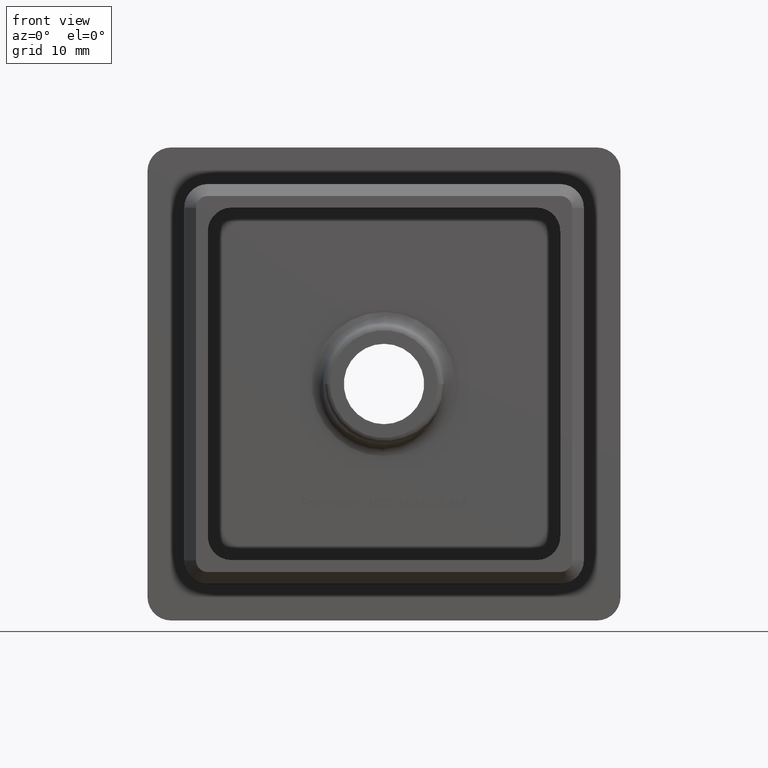
[diagram: clean part render]
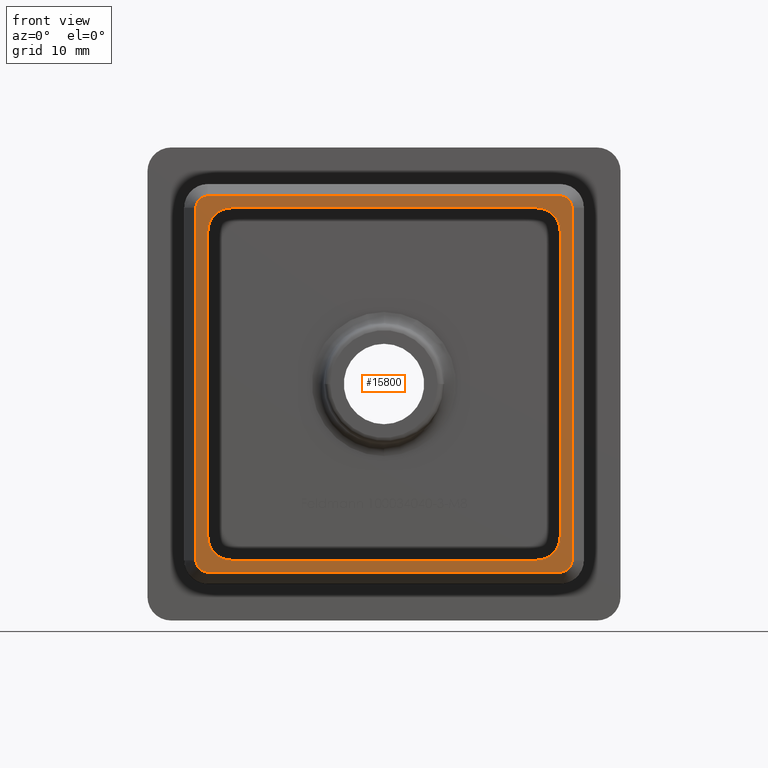
[diagram: same view with one face highlighted and labeled with its STEP entity id]
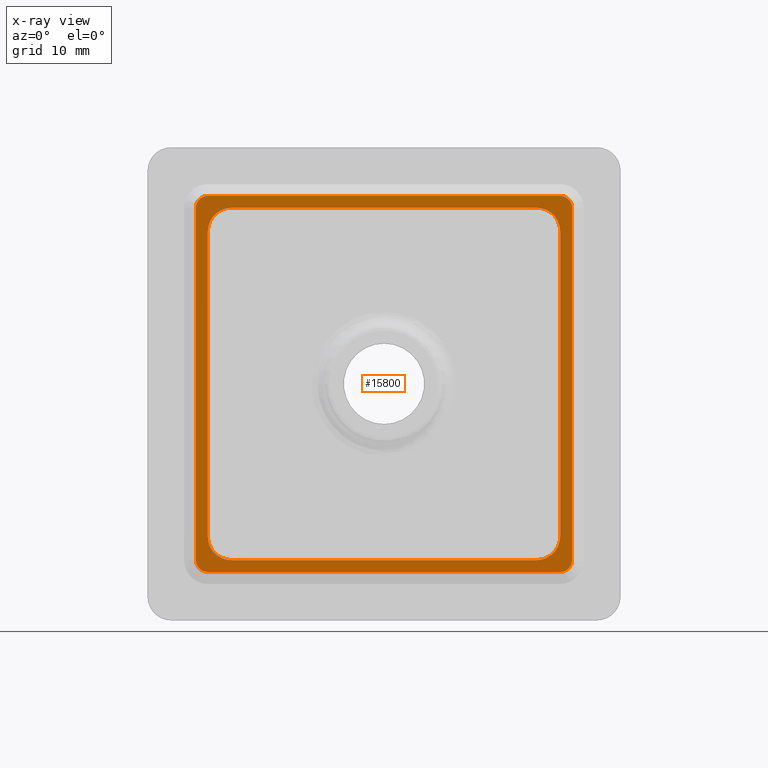
[diagram: x-ray of the same camera — body ghosted, the highlighted face saturated]
A machine part, front view. The second image highlights one B-rep face of the part: STEP entity #15800.
The next image is the same camera in x-ray: the body ghosted, the highlighted face saturated — about 0% of this face is hidden behind the body in this view.
In plain terms, the highlighted planar face has unit normal (0, -1, 0).
Its self-contained STEP definition (entity closure, byte-faithful):
#63 = ORIENTED_EDGE ( 'NONE', *, *, #4420, .T. ) ;
#165 = CIRCLE ( 'NONE', #7943, 0.9999999999999991100 ) ;
#178 = CARTESIAN_POINT ( 'NONE',  ( -14.89999999999999900, -20.00000000000000000, 12.89999999999999900 ) ) ;
#394 = LINE ( 'NONE', #7751, #15879 ) ;
#902 = CARTESIAN_POINT ( 'NONE',  ( -14.89999999999999900, -20.00000000000000000, 14.89999999999999900 ) ) ;
#972 = CIRCLE ( 'NONE', #5448, 2.000000000000000000 ) ;
#1068 = DIRECTION ( 'NONE',  ( 0.0000000000000000000, -1.000000000000000000, 0.0000000000000000000 ) ) ;
#1162 = VERTEX_POINT ( 'NONE', #7143 ) ;
#1170 = PLANE ( 'NONE',  #3607 ) ;
#1190 = EDGE_CURVE ( 'NONE', #16471, #14129, #3633, .T. ) ;
#1260 = CIRCLE ( 'NONE', #14712, 0.9999999999999991100 ) ;
#1265 = CARTESIAN_POINT ( 'NONE',  ( 12.90000000000000000, -20.00000000000000000, -12.89999999999999900 ) ) ;
#1336 = EDGE_CURVE ( 'NONE', #13993, #10744, #10351, .T. ) ;
#1438 = EDGE_CURVE ( 'NONE', #1809, #15512, #14113, .T. ) ;
#1642 = ORIENTED_EDGE ( 'NONE', *, *, #16923, .F. ) ;
#1714 = AXIS2_PLACEMENT_3D ( 'NONE', #16545, #17944, #7967 ) ;
#1809 = VERTEX_POINT ( 'NONE', #12006 ) ;
#1811 = EDGE_CURVE ( 'NONE', #4732, #1162, #394, .T. ) ;
#2181 = VECTOR ( 'NONE', #2393, 1000.000000000000000 ) ;
#2265 = ORIENTED_EDGE ( 'NONE', *, *, #12146, .F. ) ;
#2393 = DIRECTION ( 'NONE',  ( 0.0000000000000000000, -0.0000000000000000000, -1.000000000000000000 ) ) ;
#2419 = EDGE_LOOP ( 'NONE', ( #63, #14162, #16485, #4805, #7478, #6462, #7215, #11744 ) ) ;
#2426 = EDGE_CURVE ( 'NONE', #3245, #7721, #165, .T. ) ;
#2463 = DIRECTION ( 'NONE',  ( 0.0000000000000000000, 0.0000000000000000000, -1.000000000000000000 ) ) ;
#2470 = VECTOR ( 'NONE', #13766, 1000.000000000000000 ) ;
#2703 = CIRCLE ( 'NONE', #1714, 0.9999999999999991100 ) ;
#2727 = CARTESIAN_POINT ( 'NONE',  ( 0.0000000000000000000, -20.00000000000000000, 0.0000000000000000000 ) ) ;
#2821 = DIRECTION ( 'NONE',  ( 0.0000000000000000000, -1.000000000000000000, 0.0000000000000000000 ) ) ;
#2861 = CARTESIAN_POINT ( 'NONE',  ( 14.89999999999999700, -20.00000000000000000, -15.89999999999999700 ) ) ;
#3245 = VERTEX_POINT ( 'NONE', #17595 ) ;
#3365 = DIRECTION ( 'NONE',  ( 5.821219718042977200E-017, -0.0000000000000000000, 1.000000000000000000 ) ) ;
#3386 = DIRECTION ( 'NONE',  ( 0.0000000000000000000, 0.0000000000000000000, -1.000000000000000000 ) ) ;
#3588 = EDGE_CURVE ( 'NONE', #7721, #18153, #7698, .T. ) ;
#3607 = AXIS2_PLACEMENT_3D ( 'NONE', #2727, #5373, #18135 ) ;
#3633 = CIRCLE ( 'NONE', #6198, 2.000000000000000000 ) ;
#3874 = VERTEX_POINT ( 'NONE', #17355 ) ;
#4085 = CARTESIAN_POINT ( 'NONE',  ( 14.89999999999999700, -20.00000000000000000, -15.89999999999999700 ) ) ;
#4103 = DIRECTION ( 'NONE',  ( 0.0000000000000000000, 0.0000000000000000000, -1.000000000000000000 ) ) ;
#4420 = EDGE_CURVE ( 'NONE', #15512, #13838, #9660, .T. ) ;
#4732 = VERTEX_POINT ( 'NONE', #8213 ) ;
#4805 = ORIENTED_EDGE ( 'NONE', *, *, #11597, .T. ) ;
#4913 = FACE_BOUND ( 'NONE', #14825, .T. ) ;
#5090 = EDGE_CURVE ( 'NONE', #10973, #3874, #1260, .T. ) ;
#5196 = ORIENTED_EDGE ( 'NONE', *, *, #1190, .T. ) ;
#5345 = CARTESIAN_POINT ( 'NONE',  ( 14.89999999999999700, -20.00000000000000000, 14.89999999999999900 ) ) ;
#5373 = DIRECTION ( 'NONE',  ( 0.0000000000000000000, -1.000000000000000000, 0.0000000000000000000 ) ) ;
#5448 = AXIS2_PLACEMENT_3D ( 'NONE', #16463, #13760, #2463 ) ;
#5488 = VECTOR ( 'NONE', #14041, 1000.000000000000000 ) ;
#5563 = CIRCLE ( 'NONE', #13436, 2.000000000000000000 ) ;
#5628 = DIRECTION ( 'NONE',  ( 0.0000000000000000000, 0.0000000000000000000, 1.000000000000000000 ) ) ;
#5838 = CARTESIAN_POINT ( 'NONE',  ( -12.89999999999999900, -20.00000000000000000, -14.89999999999999700 ) ) ;
#6198 = AXIS2_PLACEMENT_3D ( 'NONE', #13736, #17773, #8040 ) ;
#6446 = CARTESIAN_POINT ( 'NONE',  ( -12.89999999999999900, -20.00000000000000000, 14.89999999999999900 ) ) ;
#6462 = ORIENTED_EDGE ( 'NONE', *, *, #3588, .T. ) ;
#6614 = DIRECTION ( 'NONE',  ( -1.000000000000000000, 0.0000000000000000000, 0.0000000000000000000 ) ) ;
#6751 = AXIS2_PLACEMENT_3D ( 'NONE', #11843, #11657, #3386 ) ;
#7069 = CARTESIAN_POINT ( 'NONE',  ( -15.89999999999999700, -20.00000000000000000, -14.89999999999999900 ) ) ;
#7128 = DIRECTION ( 'NONE',  ( -0.0000000000000000000, 1.000000000000000000, -0.0000000000000000000 ) ) ;
#7143 = CARTESIAN_POINT ( 'NONE',  ( 14.89999999999999900, -20.00000000000000000, 12.89999999999999900 ) ) ;
#7199 = ORIENTED_EDGE ( 'NONE', *, *, #9963, .T. ) ;
#7215 = ORIENTED_EDGE ( 'NONE', *, *, #16389, .T. ) ;
#7476 = LINE ( 'NONE', #13605, #9256 ) ;
#7478 = ORIENTED_EDGE ( 'NONE', *, *, #2426, .T. ) ;
#7650 = DIRECTION ( 'NONE',  ( 0.0000000000000000000, 0.0000000000000000000, -1.000000000000000000 ) ) ;
#7698 = LINE ( 'NONE', #10136, #11214 ) ;
#7721 = VERTEX_POINT ( 'NONE', #11605 ) ;
#7751 = CARTESIAN_POINT ( 'NONE',  ( 14.89999999999999900, -20.00000000000000000, 14.89999999999999900 ) ) ;
#7943 = AXIS2_PLACEMENT_3D ( 'NONE', #14910, #1068, #15150 ) ;
#7967 = DIRECTION ( 'NONE',  ( 0.0000000000000000000, 0.0000000000000000000, -1.000000000000000000 ) ) ;
#8040 = DIRECTION ( 'NONE',  ( 0.0000000000000000000, 0.0000000000000000000, -1.000000000000000000 ) ) ;
#8199 = DIRECTION ( 'NONE',  ( 0.0000000000000000000, 0.0000000000000000000, -1.000000000000000000 ) ) ;
#8213 = CARTESIAN_POINT ( 'NONE',  ( 14.89999999999999700, -20.00000000000000000, -12.90000000000000000 ) ) ;
#8639 = LINE ( 'NONE', #16269, #2470 ) ;
#9256 = VECTOR ( 'NONE', #6614, 1000.000000000000000 ) ;
#9316 = DIRECTION ( 'NONE',  ( 0.0000000000000000000, -1.000000000000000000, 0.0000000000000000000 ) ) ;
#9462 = DIRECTION ( 'NONE',  ( -1.000000000000000000, -0.0000000000000000000, -0.0000000000000000000 ) ) ;
#9660 = CIRCLE ( 'NONE', #14218, 1.000000000000000900 ) ;
#9963 = EDGE_CURVE ( 'NONE', #14559, #10744, #11588, .T. ) ;
#10094 = EDGE_CURVE ( 'NONE', #13993, #1162, #972, .T. ) ;
#10136 = CARTESIAN_POINT ( 'NONE',  ( -15.89999999999999700, -20.00000000000000000, -14.89999999999999700 ) ) ;
#10351 = LINE ( 'NONE', #17722, #10793 ) ;
#10744 = VERTEX_POINT ( 'NONE', #6446 ) ;
#10793 = VECTOR ( 'NONE', #9462, 1000.000000000000000 ) ;
#10973 = VERTEX_POINT ( 'NONE', #14465 ) ;
#11214 = VECTOR ( 'NONE', #7650, 1000.000000000000000 ) ;
#11258 = CARTESIAN_POINT ( 'NONE',  ( 15.89999999999999700, -20.00000000000000000, 14.89999999999999900 ) ) ;
#11588 = CIRCLE ( 'NONE', #6751, 2.000000000000000000 ) ;
#11597 = EDGE_CURVE ( 'NONE', #3874, #3245, #7476, .T. ) ;
#11605 = CARTESIAN_POINT ( 'NONE',  ( -15.89999999999999700, -20.00000000000000000, 14.89999999999999900 ) ) ;
#11657 = DIRECTION ( 'NONE',  ( -0.0000000000000000000, 1.000000000000000000, -0.0000000000000000000 ) ) ;
#11744 = ORIENTED_EDGE ( 'NONE', *, *, #1438, .T. ) ;
#11812 = CARTESIAN_POINT ( 'NONE',  ( 12.90000000000000000, -20.00000000000000000, 14.89999999999999900 ) ) ;
#11843 = CARTESIAN_POINT ( 'NONE',  ( -12.89999999999999900, -20.00000000000000000, 12.89999999999999900 ) ) ;
#12006 = CARTESIAN_POINT ( 'NONE',  ( -14.89999999999999900, -20.00000000000000000, -15.89999999999999700 ) ) ;
#12146 = EDGE_CURVE ( 'NONE', #14559, #14129, #15422, .T. ) ;
#12577 = DIRECTION ( 'NONE',  ( 0.0000000000000000000, 0.0000000000000000000, -1.000000000000000000 ) ) ;
#13436 = AXIS2_PLACEMENT_3D ( 'NONE', #1265, #7128, #4103 ) ;
#13479 = ORIENTED_EDGE ( 'NONE', *, *, #15052, .T. ) ;
#13605 = CARTESIAN_POINT ( 'NONE',  ( -14.89999999999999900, -20.00000000000000000, 15.89999999999999700 ) ) ;
#13736 = CARTESIAN_POINT ( 'NONE',  ( -12.89999999999999900, -20.00000000000000000, -12.89999999999999700 ) ) ;
#13760 = DIRECTION ( 'NONE',  ( -0.0000000000000000000, 1.000000000000000000, -0.0000000000000000000 ) ) ;
#13766 = DIRECTION ( 'NONE',  ( 1.000000000000000000, 0.0000000000000000000, -5.821219718042978400E-017 ) ) ;
#13838 = VERTEX_POINT ( 'NONE', #18094 ) ;
#13993 = VERTEX_POINT ( 'NONE', #11812 ) ;
#14041 = DIRECTION ( 'NONE',  ( 1.000000000000000000, 0.0000000000000000000, 0.0000000000000000000 ) ) ;
#14113 = LINE ( 'NONE', #4085, #5488 ) ;
#14129 = VERTEX_POINT ( 'NONE', #14653 ) ;
#14162 = ORIENTED_EDGE ( 'NONE', *, *, #18111, .T. ) ;
#14218 = AXIS2_PLACEMENT_3D ( 'NONE', #17509, #9316, #12577 ) ;
#14465 = CARTESIAN_POINT ( 'NONE',  ( 15.89999999999999700, -20.00000000000000000, 14.89999999999999900 ) ) ;
#14559 = VERTEX_POINT ( 'NONE', #178 ) ;
#14653 = CARTESIAN_POINT ( 'NONE',  ( -14.89999999999999900, -20.00000000000000000, -12.89999999999999700 ) ) ;
#14712 = AXIS2_PLACEMENT_3D ( 'NONE', #5345, #2821, #8199 ) ;
#14825 = EDGE_LOOP ( 'NONE', ( #1642, #5196, #2265, #7199, #15535, #17883, #15905, #13479 ) ) ;
#14910 = CARTESIAN_POINT ( 'NONE',  ( -14.89999999999999900, -20.00000000000000000, 14.89999999999999900 ) ) ;
#14919 = CARTESIAN_POINT ( 'NONE',  ( 12.90000000000000000, -20.00000000000000000, -14.89999999999999900 ) ) ;
#15052 = EDGE_CURVE ( 'NONE', #4732, #17880, #5563, .T. ) ;
#15150 = DIRECTION ( 'NONE',  ( 0.0000000000000000000, 0.0000000000000000000, -1.000000000000000000 ) ) ;
#15422 = LINE ( 'NONE', #902, #2181 ) ;
#15512 = VERTEX_POINT ( 'NONE', #2861 ) ;
#15535 = ORIENTED_EDGE ( 'NONE', *, *, #1336, .F. ) ;
#15739 = FACE_OUTER_BOUND ( 'NONE', #2419, .T. ) ;
#15800 = ADVANCED_FACE ( 'NONE', ( #15739, #4913 ), #1170, .T. ) ;
#15879 = VECTOR ( 'NONE', #3365, 1000.000000000000000 ) ;
#15905 = ORIENTED_EDGE ( 'NONE', *, *, #1811, .F. ) ;
#16269 = CARTESIAN_POINT ( 'NONE',  ( -14.89999999999999900, -20.00000000000000000, -14.89999999999999700 ) ) ;
#16389 = EDGE_CURVE ( 'NONE', #18153, #1809, #2703, .T. ) ;
#16463 = CARTESIAN_POINT ( 'NONE',  ( 12.89999999999999900, -20.00000000000000000, 12.89999999999999900 ) ) ;
#16471 = VERTEX_POINT ( 'NONE', #5838 ) ;
#16485 = ORIENTED_EDGE ( 'NONE', *, *, #5090, .T. ) ;
#16545 = CARTESIAN_POINT ( 'NONE',  ( -14.89999999999999900, -20.00000000000000000, -14.89999999999999900 ) ) ;
#16923 = EDGE_CURVE ( 'NONE', #16471, #17880, #8639, .T. ) ;
#17224 = LINE ( 'NONE', #11258, #17886 ) ;
#17355 = CARTESIAN_POINT ( 'NONE',  ( 14.89999999999999700, -20.00000000000000000, 15.89999999999999700 ) ) ;
#17509 = CARTESIAN_POINT ( 'NONE',  ( 14.89999999999999900, -20.00000000000000000, -14.89999999999999700 ) ) ;
#17595 = CARTESIAN_POINT ( 'NONE',  ( -14.89999999999999900, -20.00000000000000000, 15.89999999999999700 ) ) ;
#17722 = CARTESIAN_POINT ( 'NONE',  ( -14.89999999999999900, -20.00000000000000000, 14.89999999999999900 ) ) ;
#17773 = DIRECTION ( 'NONE',  ( -0.0000000000000000000, 1.000000000000000000, -0.0000000000000000000 ) ) ;
#17880 = VERTEX_POINT ( 'NONE', #14919 ) ;
#17883 = ORIENTED_EDGE ( 'NONE', *, *, #10094, .T. ) ;
#17886 = VECTOR ( 'NONE', #5628, 1000.000000000000000 ) ;
#17944 = DIRECTION ( 'NONE',  ( 0.0000000000000000000, -1.000000000000000000, 0.0000000000000000000 ) ) ;
#18094 = CARTESIAN_POINT ( 'NONE',  ( 15.89999999999999700, -20.00000000000000000, -14.89999999999999700 ) ) ;
#18111 = EDGE_CURVE ( 'NONE', #13838, #10973, #17224, .T. ) ;
#18135 = DIRECTION ( 'NONE',  ( 0.0000000000000000000, -0.0000000000000000000, -1.000000000000000000 ) ) ;
#18153 = VERTEX_POINT ( 'NONE', #7069 ) ;